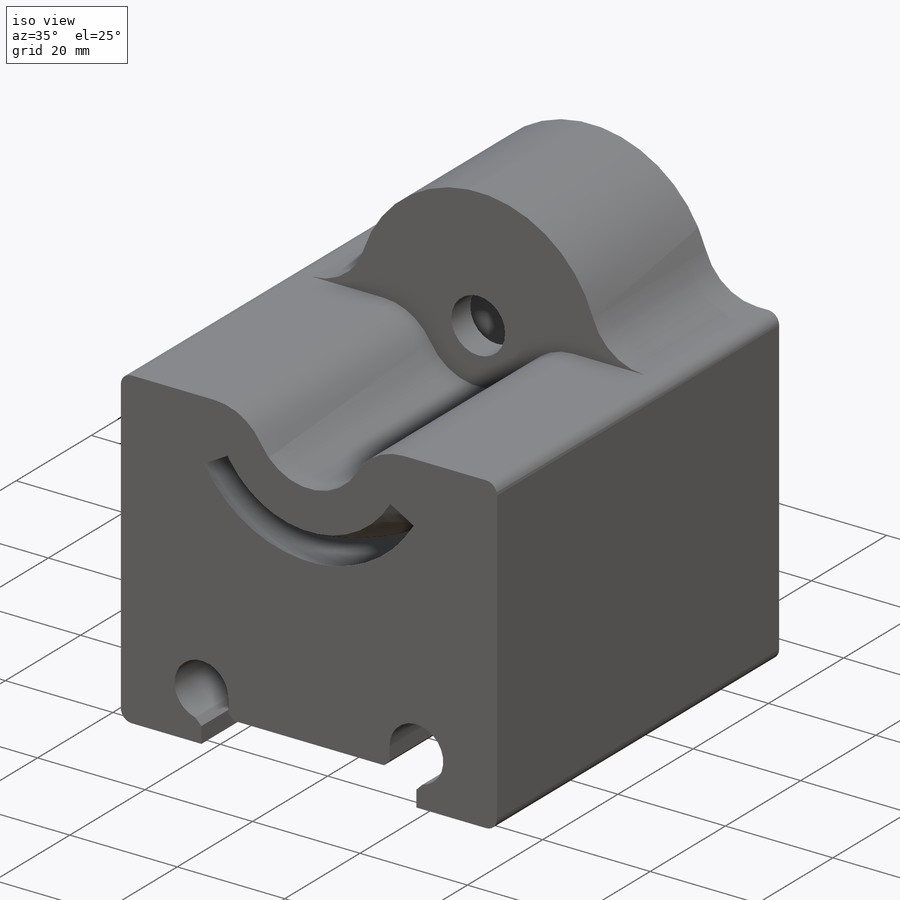
[diagram: iso view]
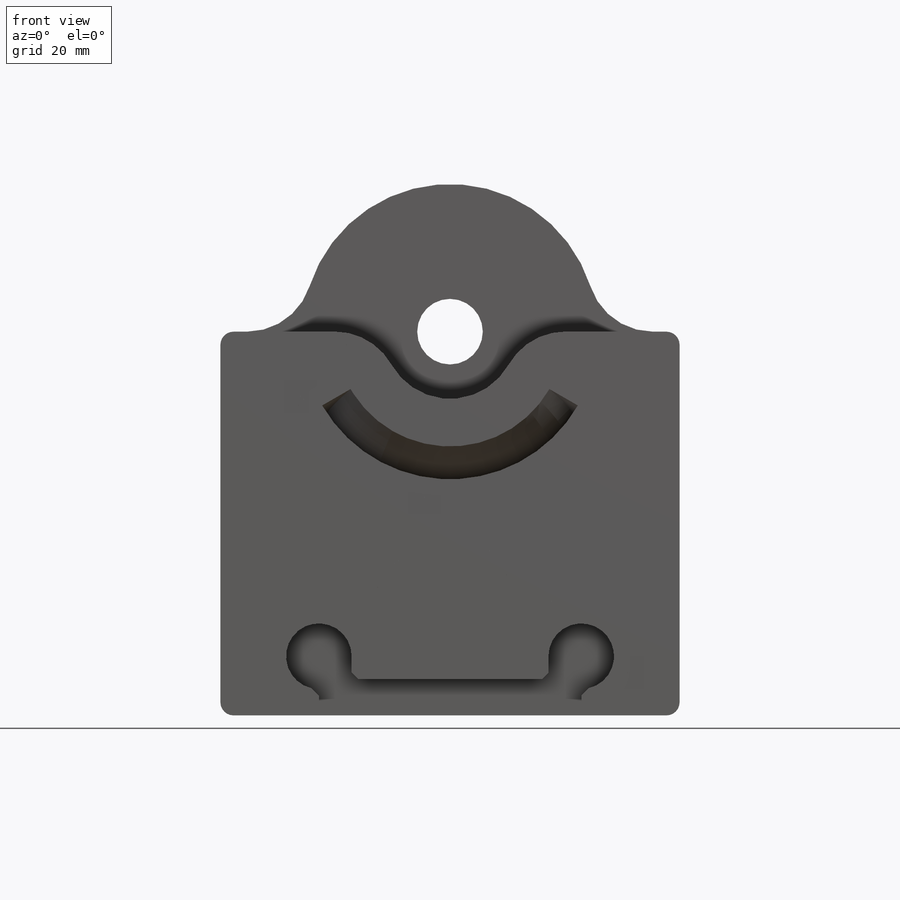
[diagram: front view]
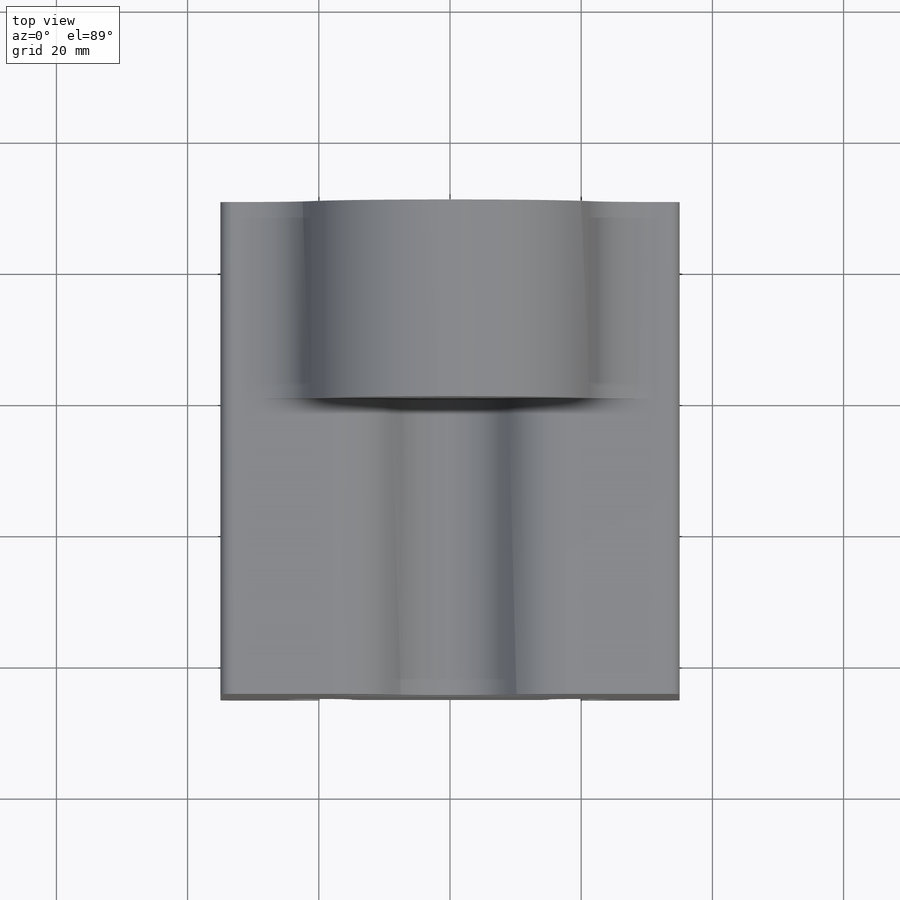
[diagram: top view]
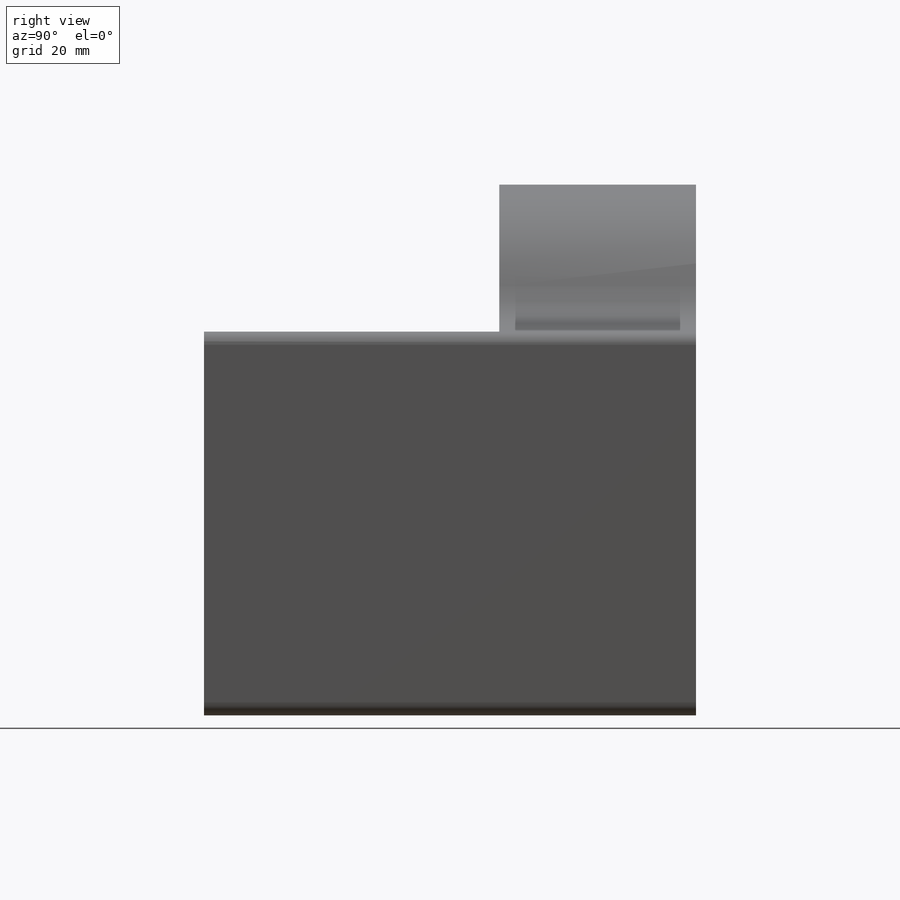
[diagram: right view]
SOLIDWORKS PART (.sldprt)
format: sldprt  version: not decoded by parser v0  size: 671,232 bytes
history: native  units: mm
features: sketch x12, extrude x7, cut_extrude x2, fillet x2, material x1, chamfer x1, shell x1 (+13 scaffold rows collapsed)
feature tree (39):
  scaffold x13  (default folders/planes/origin — collapsed)
  material  "Material <not specified>"
  sketch  "Sketch1"  dims[D1=70.0mm D2=30.0mm]
  extrude  "Boss-Extrude1"  Depth=25mm
  sketch  "Sketch2"  dims[c1.D3=~6.388752mm c2.D3=10.0mm c2.D4=10.0mm c2.D1=40.0mm c2.D2=5.5mm c3.D4=9.0mm]
  cut_extrude  "Cut-Extrude1"  [1 undecoded]
  sketch  "Sketch3"
  extrude  "Boss-Extrude2"  Depth=50mm
  sketch  "Sketch4"  dims[D1=20.5mm D2=49.0mm D3=18.5mm D4=10.0mm]
  extrude  "Boss-Extrude3"  [1 undecoded]
  sketch  "Sketch5"  dims[D1=32.0mm]
  cut_extrude  "Cut-Extrude2"  Depth=45mm
  sketch  "Sketch6"  dims[D1=45.0mm D2=10.0mm D3=10.0mm D4=13.0mm]
  extrude  "Boss-Extrude4"  [1 undecoded]
  sketch  "Sketch7"  dims[D1=10.0mm]
  extrude  "Boss-Extrude5"  Depth=5mm
  fillet  "Fillet3"  Radius=10mm
  sketch  "Sketch12"  dims[D1=1.2mm D2=45.0deg]
  sketch  "Sketch13"  dims[c1.D1=35.0mm c1.D2=60.0deg c1.D3=~3.535534mm c2.D3=120.0deg]
  sketch  "Sketch14"  dims[c1.D1=60.0mm c1.D2=7.5mm c2.D2=55.0deg c2.D3=3.75mm c3.D3=110.0deg]
  chamfer  "Chamfer1"  Distance=1mm Angle=45deg
  shell  "Shell1"  Thickness=4mm
  sketch  "Sketch15"  dims[D1=1.2mm D2=1.2mm]
  extrude  "Boss-Extrude6"  [1 undecoded]
  sketch  "Sketch16"  dims[c1.D1=~55.722958mm c2.D1=~0.831977deg c3.D1=1.2mm c3.D2=0.6mm c3.D3=1.2mm c3.D4=0.6mm]
  extrude  "Boss-Extrude7"  [1 undecoded]
  fillet  "Fillet4"  Radius=2mm
decode coverage: 19 of 25 modeling features carry decoded parameters
note: ~ marks probable driven/reference dimensions
note: 5 parameter values undecoded
summary: no parameter record found for 5 features
note: suppression state not decoded; provenance and decode notes live in map.json
